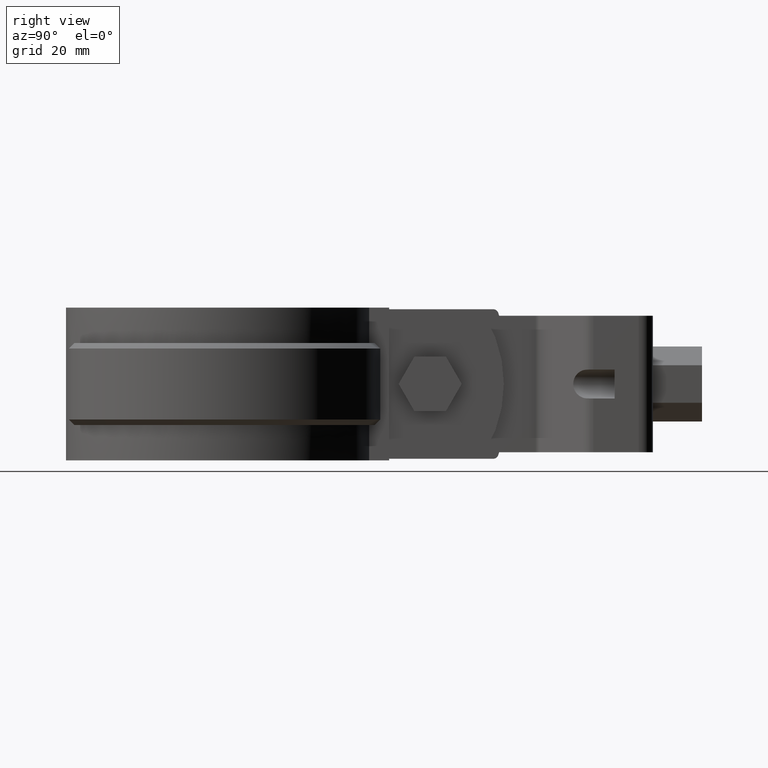
[diagram: clean part render]
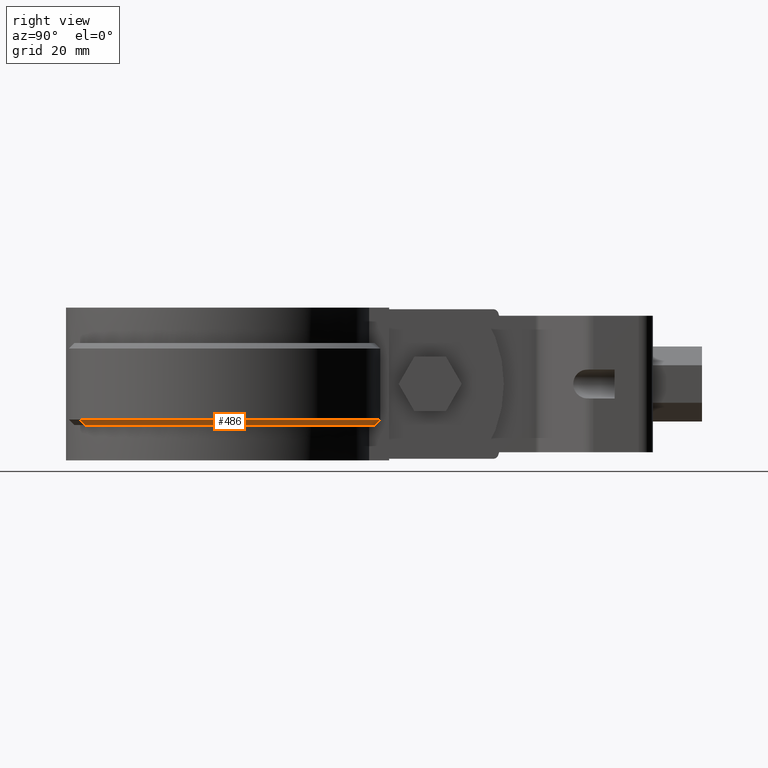
[diagram: same view with one face highlighted and labeled with its STEP entity id]
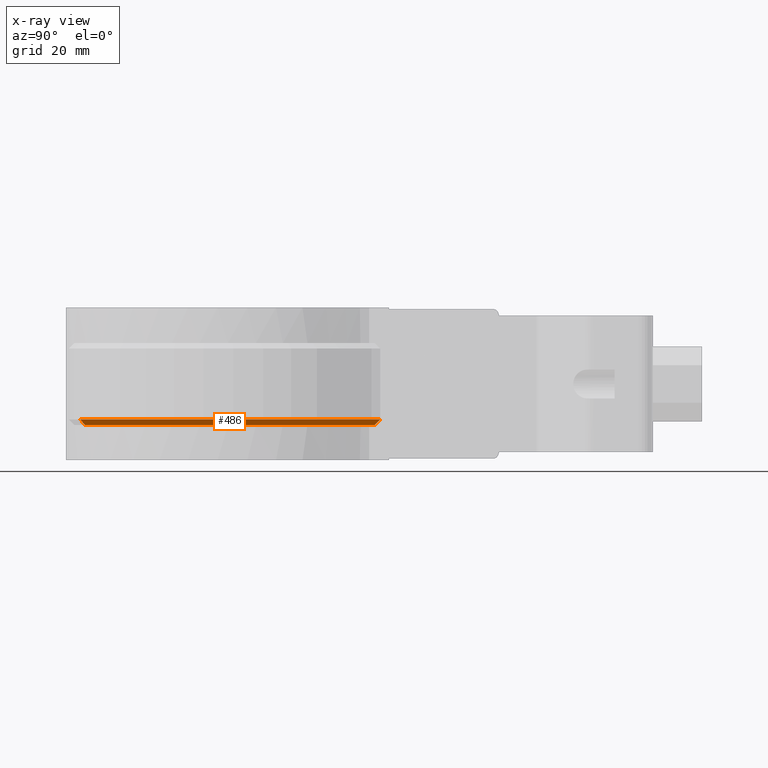
[diagram: x-ray of the same camera — body ghosted, the highlighted face saturated]
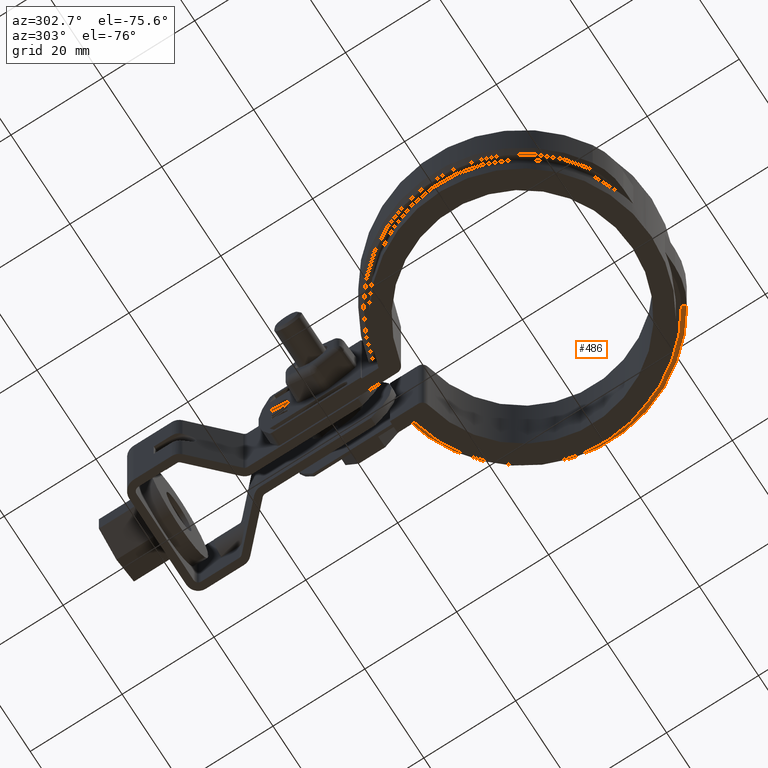
[diagram: same view with one face highlighted and labeled with its STEP entity id]
A machine part, right view. The second image highlights one B-rep face of the part: STEP entity #486.
The next image is the same camera in x-ray: the body ghosted, the highlighted face saturated — about 0% of this face is hidden behind the body in this view.
A second angle (auxiliary view) of the same face is appended — the face is thin or edge-on in the first view.
In plain terms, the highlighted conical surface has half-angle 45 deg.
Its self-contained STEP definition (entity closure, byte-faithful):
#486 = ADVANCED_FACE( '', ( #966 ), #967, .T. );
#966 = FACE_OUTER_BOUND( '', #2310, .T. );
#967 = CONICAL_SURFACE( '', #2311, 29.0950000000000, 0.785398163397448 );
#2310 = EDGE_LOOP( '', ( #5061, #5062, #5063, #5064 ) );
#2311 = AXIS2_PLACEMENT_3D( '', #5065, #5066, #5067 );
#5061 = ORIENTED_EDGE( '', *, *, #7260, .F. );
#5062 = ORIENTED_EDGE( '', *, *, #7305, .F. );
#5063 = ORIENTED_EDGE( '', *, *, #7302, .F. );
#5064 = ORIENTED_EDGE( '', *, *, #7306, .F. );
#5065 = CARTESIAN_POINT( '', ( 8.67361737988404E-016, 0.000000000000000, -20.0000000000000 ) );
#5066 = DIRECTION( '', ( 0.000000000000000, 0.000000000000000, 1.00000000000000 ) );
#5067 = DIRECTION( '', ( 1.00000000000000, 0.000000000000000, 0.000000000000000 ) );
#7260 = EDGE_CURVE( '', #8466, #8468, #8469, .T. );
#7302 = EDGE_CURVE( '', #8538, #8539, #8540, .T. );
#7305 = EDGE_CURVE( '', #8539, #8466, #8543, .T. );
#7306 = EDGE_CURVE( '', #8468, #8538, #8544, .F. );
#8466 = VERTEX_POINT( '', #11935 );
#8468 = VERTEX_POINT( '', #11938 );
#8469 = B_SPLINE_CURVE_WITH_KNOTS( '', 3, ( #11939, #11940, #11941, #11942 ), .UNSPECIFIED., .F., .F., ( 4, 4 ), ( 4.90653893338680E-018, 0.00142981905526116 ), .UNSPECIFIED. );
#8538 = VERTEX_POINT( '', #12050 );
#8539 = VERTEX_POINT( '', #12051 );
#8540 = LINE( '', #12052, #12053 );
#8543 = CIRCLE( '', #12056, 30.0950000000000 );
#8544 = CIRCLE( '', #12057, 29.0950000000000 );
#11935 = CARTESIAN_POINT( '', ( 6.10000000000001, 29.4703075145137, -19.0000000000000 ) );
#11938 = CARTESIAN_POINT( '', ( 6.10000000000001, 28.4483571581910, -20.0000000000000 ) );
#11939 = CARTESIAN_POINT( '', ( 6.10000000000000, 29.4703075145136, -19.0000000000000 ) );
#11940 = CARTESIAN_POINT( '', ( 6.10000000000000, 29.1297802412302, -19.3334588290661 ) );
#11941 = CARTESIAN_POINT( '', ( 6.10000000000001, 28.7891343892327, -19.6667966186612 ) );
#11942 = CARTESIAN_POINT( '', ( 6.10000000000001, 28.4483571581910, -20.0000000000000 ) );
#12050 = CARTESIAN_POINT( '', ( 15.4421189501993, -24.6588723855714, -20.0000000000000 ) );
#12051 = CARTESIAN_POINT( '', ( 15.9728671526464, -25.5064019399818, -19.0000000000000 ) );
#12052 = CARTESIAN_POINT( '', ( 15.4421189501993, -24.6588723855714, -20.0000000000000 ) );
#12053 = VECTOR( '', #13977, 1000.00000000000 );
#12056 = AXIS2_PLACEMENT_3D( '', #13984, #13985, #13986 );
#12057 = AXIS2_PLACEMENT_3D( '', #13987, #13988, #13989 );
#13977 = DIRECTION( '', ( 0.375295653052935, -0.599293895179626, 0.707106781186549 ) );
#13984 = CARTESIAN_POINT( '', ( 8.67361737988404E-016, 0.000000000000000, -19.0000000000000 ) );
#13985 = DIRECTION( '', ( 0.000000000000000, 0.000000000000000, 1.00000000000000 ) );
#13986 = DIRECTION( '', ( 1.00000000000000, 0.000000000000000, 0.000000000000000 ) );
#13987 = CARTESIAN_POINT( '', ( 8.67361737988404E-016, 0.000000000000000, -20.0000000000000 ) );
#13988 = DIRECTION( '', ( 0.000000000000000, 0.000000000000000, 1.00000000000000 ) );
#13989 = DIRECTION( '', ( 1.00000000000000, 0.000000000000000, 0.000000000000000 ) );